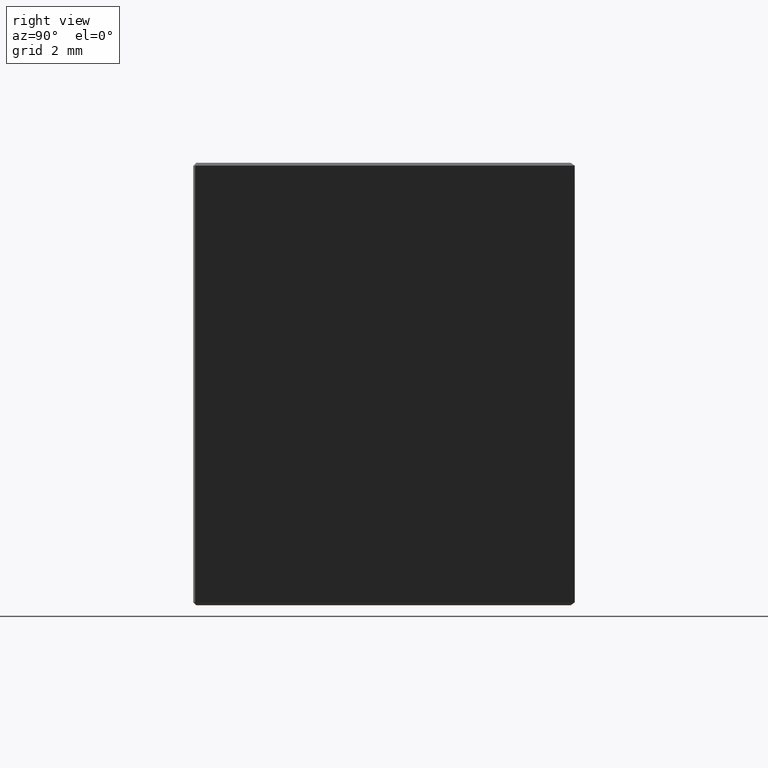
[diagram: clean part render]
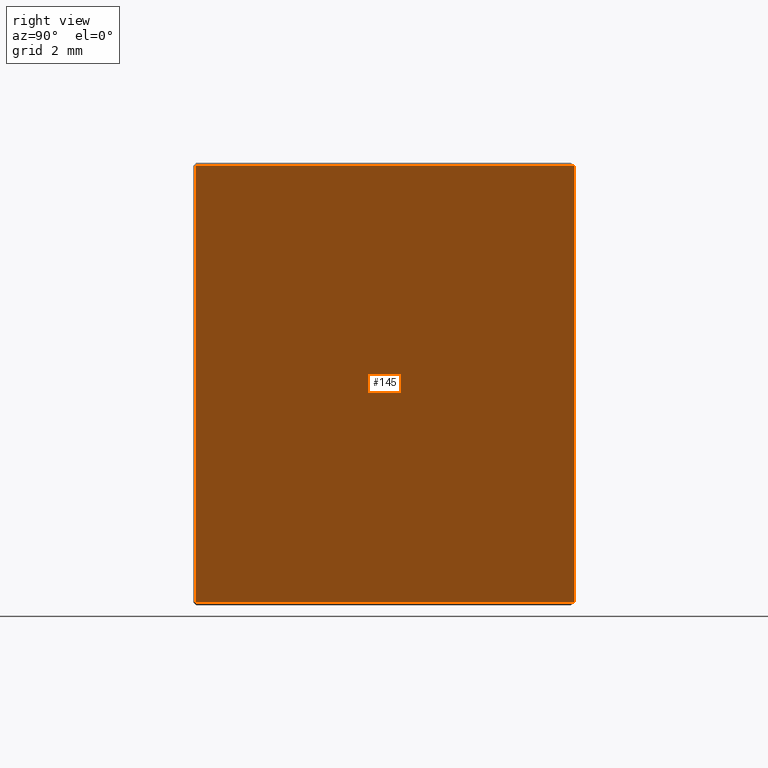
[diagram: same view with one face highlighted and labeled with its STEP entity id]
A machine part, right view. The second image highlights one B-rep face of the part: STEP entity #145.
In plain terms, the highlighted planar face has unit normal (-0.866, -0.5, 0).
Its self-contained STEP definition (entity closure, byte-faithful):
#6 = EDGE_CURVE ( 'NONE', #84, #376, #381, .T. ) ;
#7 = DIRECTION ( 'NONE',  ( -0.5000000000000001110, 0.8660254037844387076, 0.000000000000000000 ) ) ;
#36 = CARTESIAN_POINT ( 'NONE',  ( 7.463397459621556429, -12.92698359714502132, 0.09999999999999939493 ) ) ;
#39 = ORIENTED_EDGE ( 'NONE', *, *, #479, .T. ) ;
#51 = EDGE_CURVE ( 'NONE', #376, #141, #338, .T. ) ;
#61 = DIRECTION ( 'NONE',  ( 0.5000000000000001110, -0.8660254037844387076, -0.000000000000000000 ) ) ;
#72 = FACE_OUTER_BOUND ( 'NONE', #391, .T. ) ;
#84 = VERTEX_POINT ( 'NONE', #484 ) ;
#121 = VECTOR ( 'NONE', #377, 1000.000000000000000 ) ;
#140 = VECTOR ( 'NONE', #163, 1000.000000000000000 ) ;
#141 = VERTEX_POINT ( 'NONE', #191 ) ;
#145 = ADVANCED_FACE ( 'NONE', ( #72 ), #236, .F. ) ;
#149 = DIRECTION ( 'NONE',  ( -0.8660254037844387076, -0.5000000000000001110, 0.000000000000000000 ) ) ;
#163 = DIRECTION ( 'NONE',  ( 0.000000000000000000, 0.000000000000000000, -1.000000000000000000 ) ) ;
#181 = CARTESIAN_POINT ( 'NONE',  ( 0.05000000000000061340, -0.08660254037844491992, 14.90000000000000391 ) ) ;
#191 = CARTESIAN_POINT ( 'NONE',  ( 7.463397459621556429, -12.92698359714502132, 14.90000000000000391 ) ) ;
#201 = ORIENTED_EDGE ( 'NONE', *, *, #393, .T. ) ;
#205 = VERTEX_POINT ( 'NONE', #36 ) ;
#236 = PLANE ( 'NONE',  #463 ) ;
#257 = ORIENTED_EDGE ( 'NONE', *, *, #6, .T. ) ;
#265 = CARTESIAN_POINT ( 'NONE',  ( 0.05000000000000056483, -0.08660254037844497543, 15.00000000000000000 ) ) ;
#285 = ORIENTED_EDGE ( 'NONE', *, *, #51, .T. ) ;
#293 = LINE ( 'NONE', #433, #140 ) ;
#338 = LINE ( 'NONE', #483, #485 ) ;
#346 = CARTESIAN_POINT ( 'NONE',  ( 7.500000000000000000, -12.99038105676657828, 15.00000000000000000 ) ) ;
#361 = LINE ( 'NONE', #474, #403 ) ;
#376 = VERTEX_POINT ( 'NONE', #181 ) ;
#377 = DIRECTION ( 'NONE',  ( 0.000000000000000000, 0.000000000000000000, 1.000000000000000000 ) ) ;
#381 = LINE ( 'NONE', #265, #121 ) ;
#391 = EDGE_LOOP ( 'NONE', ( #257, #285, #201, #39 ) ) ;
#393 = EDGE_CURVE ( 'NONE', #141, #205, #293, .T. ) ;
#403 = VECTOR ( 'NONE', #7, 999.9999999999998863 ) ;
#433 = CARTESIAN_POINT ( 'NONE',  ( 7.463397459621556429, -12.92698359714502132, 15.00000000000000000 ) ) ;
#463 = AXIS2_PLACEMENT_3D ( 'NONE', #346, #149, #499 ) ;
#474 = CARTESIAN_POINT ( 'NONE',  ( 7.500000000000000000, -12.99038105676657828, 0.09999999999999939493 ) ) ;
#479 = EDGE_CURVE ( 'NONE', #205, #84, #361, .T. ) ;
#483 = CARTESIAN_POINT ( 'NONE',  ( 7.500000000000000000, -12.99038105676657828, 14.90000000000000391 ) ) ;
#484 = CARTESIAN_POINT ( 'NONE',  ( 0.05000000000000061340, -0.08660254037844491992, 0.09999999999999939493 ) ) ;
#485 = VECTOR ( 'NONE', #61, 999.9999999999998863 ) ;
#499 = DIRECTION ( 'NONE',  ( 0.5000000000000000000, -0.8660254037844385966, 0.000000000000000000 ) ) ;